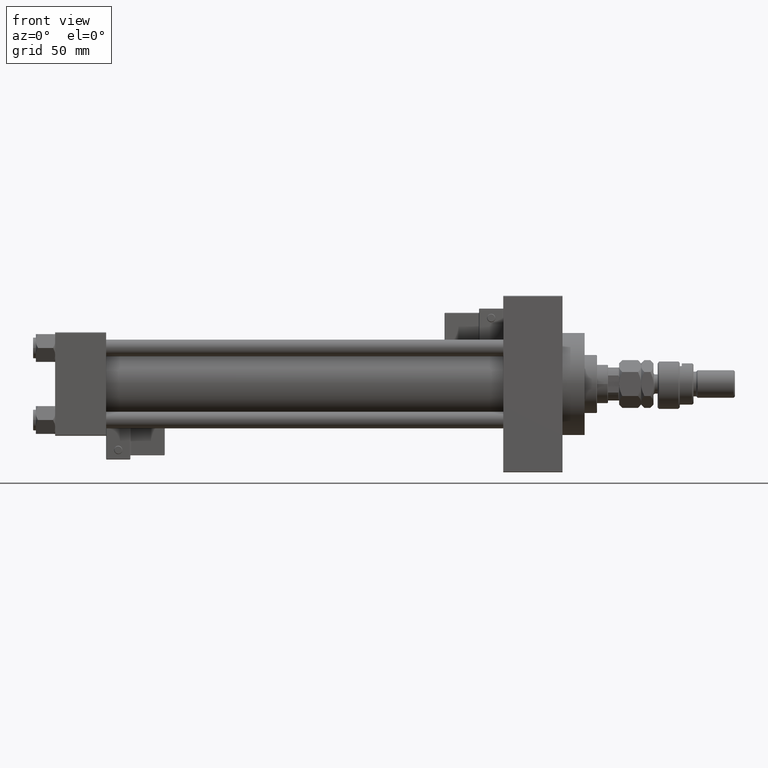
[diagram: clean part render]
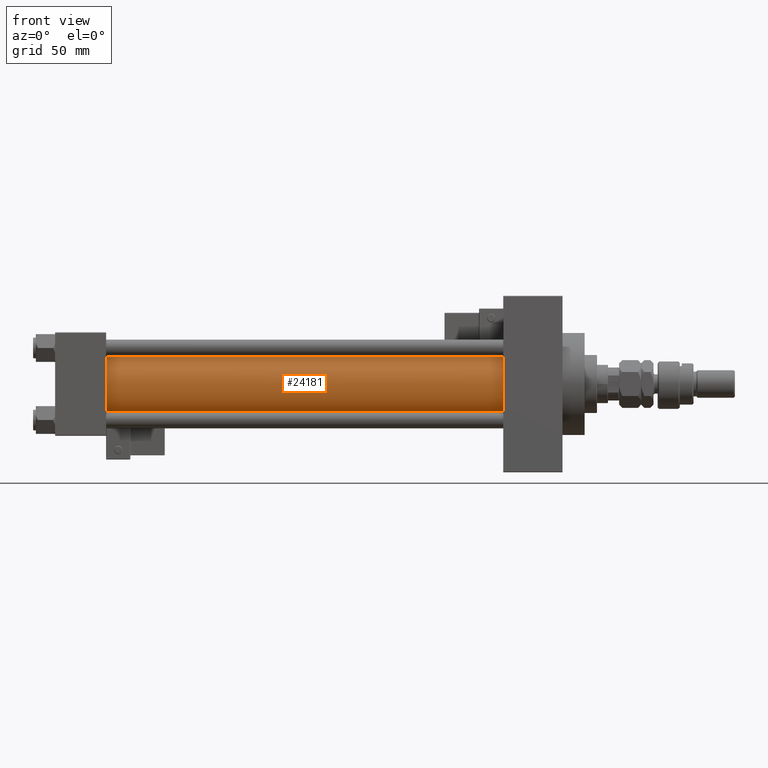
[diagram: same view with one face highlighted and labeled with its STEP entity id]
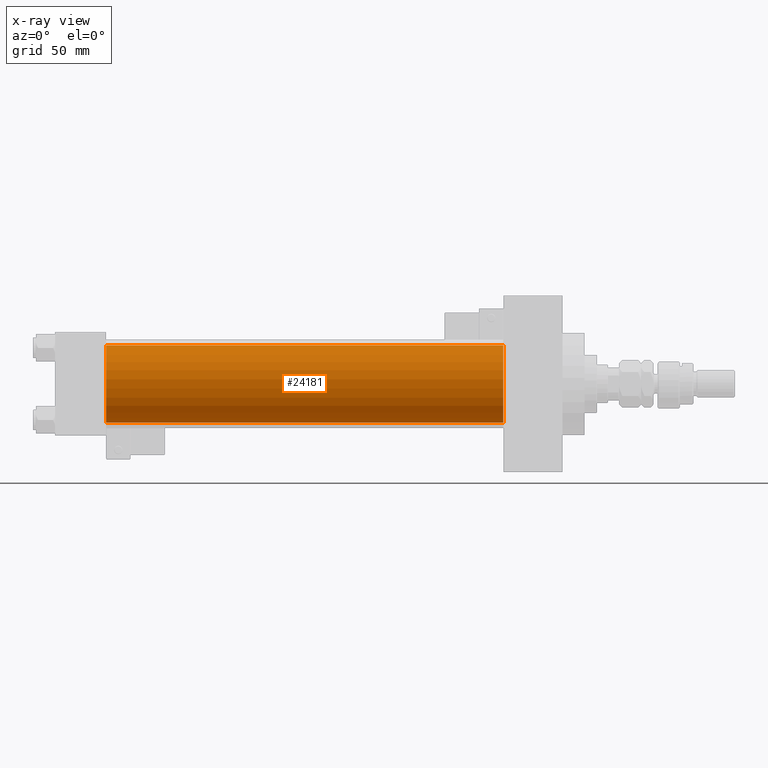
[diagram: x-ray of the same camera — body ghosted, the highlighted face saturated]
A machine part, front view. The second image highlights one B-rep face of the part: STEP entity #24181.
The next image is the same camera in x-ray: the body ghosted, the highlighted face saturated — about 0% of this face is hidden behind the body in this view.
In plain terms, the highlighted cylindrical surface (partial cylindrical patch) has radius 28 mm, axis along (-1, -0, -0).
Its self-contained STEP definition (entity closure, byte-faithful):
#412 = CIRCLE ( 'NONE', #31623, 28.00000000000000000 ) ;
#1325 = VECTOR ( 'NONE', #6713, 1000.000000000000000 ) ;
#1628 = LINE ( 'NONE', #26695, #32883 ) ;
#2323 = CARTESIAN_POINT ( 'NONE',  ( 324.9999999999999432, -2.602085213965210642E-15, 0.000000000000000000 ) ) ;
#4335 = DIRECTION ( 'NONE',  ( 0.000000000000000000, 0.000000000000000000, 1.000000000000000000 ) ) ;
#6713 = DIRECTION ( 'NONE',  ( -1.000000000000000000, -0.000000000000000000, -0.000000000000000000 ) ) ;
#7816 = DIRECTION ( 'NONE',  ( 0.000000000000000000, 0.000000000000000000, 1.000000000000000000 ) ) ;
#12017 = DIRECTION ( 'NONE',  ( -1.000000000000000000, -0.000000000000000000, -0.000000000000000000 ) ) ;
#15828 = EDGE_LOOP ( 'NONE', ( #47746, #46362, #46584, #24308 ) ) ;
#17982 = CARTESIAN_POINT ( 'NONE',  ( 324.9999999999999432, 8.269258236473784371E-16, -28.00000000000000000 ) ) ;
#18683 = DIRECTION ( 'NONE',  ( 0.000000000000000000, 0.000000000000000000, -1.000000000000000000 ) ) ;
#19141 = CARTESIAN_POINT ( 'NONE',  ( 36.99999999999997868, -2.602085213965210642E-15, 0.000000000000000000 ) ) ;
#20577 = EDGE_CURVE ( 'NONE', #46786, #51568, #41231, .T. ) ;
#21974 = AXIS2_PLACEMENT_3D ( 'NONE', #40778, #12017, #4335 ) ;
#24181 = ADVANCED_FACE ( 'NONE', ( #29145 ), #33359, .T. ) ;
#24308 = ORIENTED_EDGE ( 'NONE', *, *, #20577, .T. ) ;
#25838 = DIRECTION ( 'NONE',  ( 1.000000000000000000, 0.000000000000000000, 0.000000000000000000 ) ) ;
#26082 = CARTESIAN_POINT ( 'NONE',  ( 36.99999999999997868, 8.269258236473784371E-16, -28.00000000000000000 ) ) ;
#26366 = EDGE_CURVE ( 'NONE', #45356, #46786, #1628, .T. ) ;
#26695 = CARTESIAN_POINT ( 'NONE',  ( 324.9999999999999432, -2.602085213965210642E-15, 28.00000000000000000 ) ) ;
#29145 = FACE_OUTER_BOUND ( 'NONE', #15828, .T. ) ;
#30213 = CARTESIAN_POINT ( 'NONE',  ( 324.9999999999999432, 8.269258236473784371E-16, -28.00000000000000000 ) ) ;
#31623 = AXIS2_PLACEMENT_3D ( 'NONE', #2323, #25838, #18683 ) ;
#32883 = VECTOR ( 'NONE', #42823, 1000.000000000000000 ) ;
#33359 = CYLINDRICAL_SURFACE ( 'NONE', #21974, 28.00000000000000000 ) ;
#34688 = CARTESIAN_POINT ( 'NONE',  ( 36.99999999999997868, -2.602085213965210642E-15, 28.00000000000000000 ) ) ;
#34694 = LINE ( 'NONE', #30213, #1325 ) ;
#39508 = DIRECTION ( 'NONE',  ( 1.000000000000000000, -0.000000000000000000, 0.000000000000000000 ) ) ;
#40778 = CARTESIAN_POINT ( 'NONE',  ( 324.9999999999999432, -2.602085213965210642E-15, 0.000000000000000000 ) ) ;
#41231 = CIRCLE ( 'NONE', #48014, 28.00000000000000000 ) ;
#42823 = DIRECTION ( 'NONE',  ( -1.000000000000000000, -0.000000000000000000, -0.000000000000000000 ) ) ;
#45356 = VERTEX_POINT ( 'NONE', #48359 ) ;
#45498 = EDGE_CURVE ( 'NONE', #45356, #47123, #412, .T. ) ;
#46362 = ORIENTED_EDGE ( 'NONE', *, *, #45498, .F. ) ;
#46584 = ORIENTED_EDGE ( 'NONE', *, *, #26366, .T. ) ;
#46786 = VERTEX_POINT ( 'NONE', #34688 ) ;
#47123 = VERTEX_POINT ( 'NONE', #17982 ) ;
#47746 = ORIENTED_EDGE ( 'NONE', *, *, #47764, .F. ) ;
#47764 = EDGE_CURVE ( 'NONE', #47123, #51568, #34694, .T. ) ;
#48014 = AXIS2_PLACEMENT_3D ( 'NONE', #19141, #39508, #7816 ) ;
#48359 = CARTESIAN_POINT ( 'NONE',  ( 324.9999999999999432, -2.602085213965210642E-15, 28.00000000000000000 ) ) ;
#51568 = VERTEX_POINT ( 'NONE', #26082 ) ;